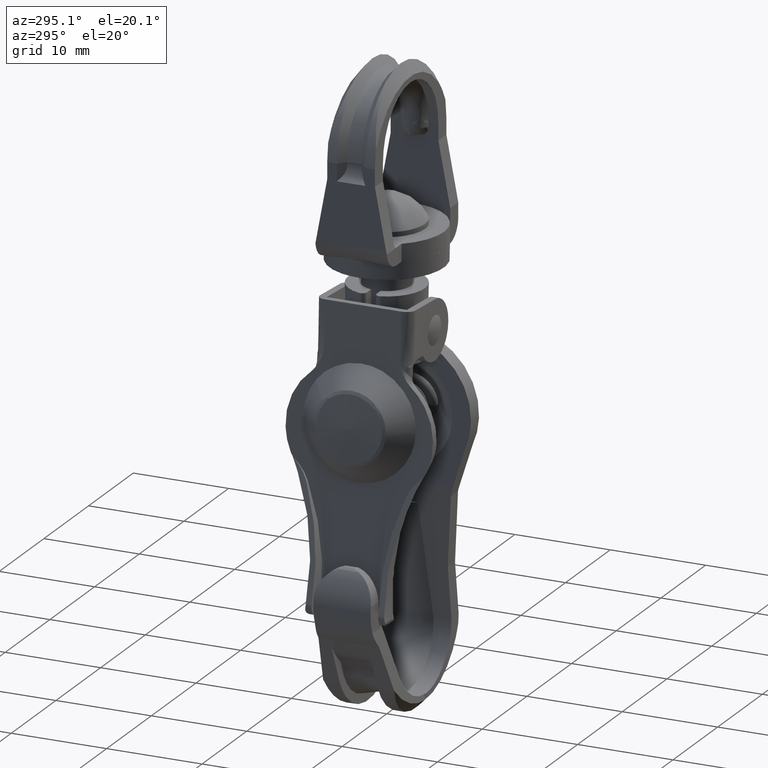
[diagram: clean part render]
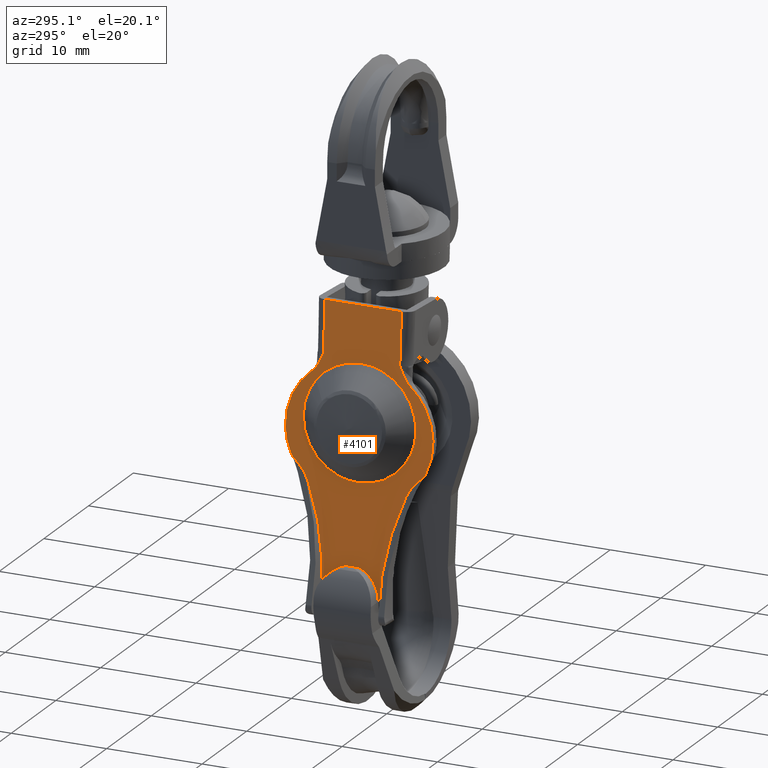
[diagram: same view with one face highlighted and labeled with its STEP entity id]
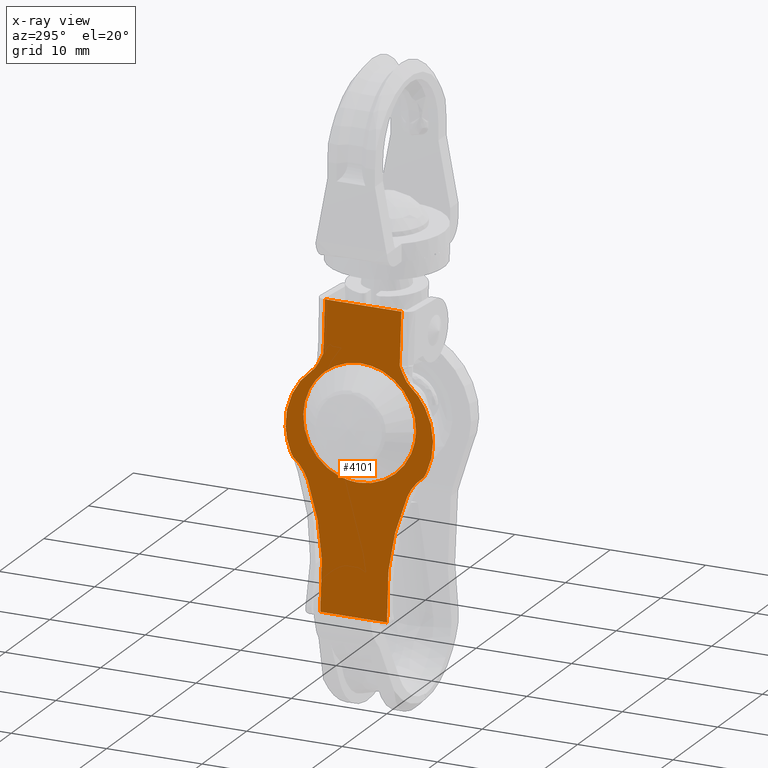
[diagram: x-ray of the same camera — body ghosted, the highlighted face saturated]
A machine part, auxiliary view. The second image highlights one B-rep face of the part: STEP entity #4101.
The next image is the same camera in x-ray: the body ghosted, the highlighted face saturated — about 0% of this face is hidden behind the body in this view.
In plain terms, the highlighted face is a freeform B-spline surface patch.
Its self-contained STEP definition (entity closure, byte-faithful):
#1745=CARTESIAN_POINT('',(-5.499999855255211,4.351844678407170,-12.529249943306100));
#1746=VERTEX_POINT('',#1745);
#1752=CARTESIAN_POINT('',(-5.500000000000000,0.0,-14.444106999999899));
#1753=VERTEX_POINT('',#1752);
#1754=CARTESIAN_POINT('',(-5.499999855255211,4.351844678407170,-12.529249943306100));
#1755=CARTESIAN_POINT('',(-5.499999868421072,3.956004394816730,-12.961668170742611));
#1756=CARTESIAN_POINT('',(-5.499999890422010,3.294532829077455,-13.496056712699390));
#1757=CARTESIAN_POINT('',(-5.499999926085918,2.222273793816458,-14.035720520259710));
#1758=CARTESIAN_POINT('',(-5.499999959310941,1.223343587372920,-14.356735489188790));
#1759=CARTESIAN_POINT('',(-5.499999985589004,0.433274308622489,-14.444170925162441));
#1760=CARTESIAN_POINT('',(-5.500000000000000,0.0,-14.444106999999899));
#1761=B_SPLINE_CURVE_WITH_KNOTS('',3,(#1754,#1755,#1756,#1757,#1758,#1759,#1760),.UNSPECIFIED.,.F.,.U.,(4,1,1,1,4),(0.000000022389491,1.758596470337595,2.523182017573594,3.593637908280760,4.893465150742548),.UNSPECIFIED.);
#1762=EDGE_CURVE('',#1746,#1753,#1761,.T.);
#1764=CARTESIAN_POINT('',(-5.500000000000000,-5.902587999999786,-8.541517837224175));
#1765=VERTEX_POINT('',#1764);
#1766=CARTESIAN_POINT('',(-5.500000000000000,0.0,-14.444106999999899));
#1767=CARTESIAN_POINT('',(-5.500000000000001,-0.410470281956269,-14.444157800272089));
#1768=CARTESIAN_POINT('',(-5.500000000000001,-1.231389166322294,-14.358148981144520));
#1769=CARTESIAN_POINT('',(-5.499999999999999,-2.316986425682539,-14.006890633059291));
#1770=CARTESIAN_POINT('',(-5.500000000000001,-3.381595031098290,-13.429467552360270));
#1771=CARTESIAN_POINT('',(-5.500000000000001,-4.349590385512271,-12.615042314032500));
#1772=CARTESIAN_POINT('',(-5.499999999999997,-5.053239418138825,-11.653914922526800));
#1773=CARTESIAN_POINT('',(-5.500000000000006,-5.498816442900020,-10.740791613035499));
#1774=CARTESIAN_POINT('',(-5.499999999999989,-5.812033143417716,-9.772881046767663));
#1775=CARTESIAN_POINT('',(-5.499999999999983,-5.902692371390180,-9.000283712499046));
#1776=CARTESIAN_POINT('',(-5.500000000000000,-5.902587999999786,-8.541517837224175));
#1777=B_SPLINE_CURVE_WITH_KNOTS('',3,(#1766,#1767,#1768,#1769,#1770,#1771,#1772,#1773,#1774,#1775,#1776),.UNSPECIFIED.,.F.,.U.,(4,1,1,1,1,1,1,1,4),(0.000000068344203,1.231409960041835,2.462828732433325,3.404507380954913,4.853190778469154,6.229503717330403,6.953867889822126,7.895545356174797,9.271822380730701),.UNSPECIFIED.);
#1778=EDGE_CURVE('',#1753,#1765,#1777,.T.);
#1780=CARTESIAN_POINT('',(-5.500000000000000,0.0,-2.638931000000099));
#1781=VERTEX_POINT('',#1780);
#1782=CARTESIAN_POINT('',(-5.500000000000000,-5.902587999999786,-8.541517837224175));
#1783=CARTESIAN_POINT('',(-5.500000000000007,-5.902746775142061,-8.034452051223457));
#1784=CARTESIAN_POINT('',(-5.499999999999993,-5.796117096422798,-7.213601071693017));
#1785=CARTESIAN_POINT('',(-5.500000000000004,-5.427137758182077,-6.162249208273804));
#1786=CARTESIAN_POINT('',(-5.500000000000000,-4.902281161693813,-5.179959644724393));
#1787=CARTESIAN_POINT('',(-5.499999999999992,-4.155373245229760,-4.281228336386927));
#1788=CARTESIAN_POINT('',(-5.500000000000006,-3.137358110333054,-3.496836518400120));
#1789=CARTESIAN_POINT('',(-5.500000000000060,-2.136799167439115,-3.000863111106814));
#1790=CARTESIAN_POINT('',(-5.499999999999789,-1.062376168395098,-2.703580191266305));
#1791=CARTESIAN_POINT('',(-5.500000000000173,-0.362179945379743,-2.638897043980460));
#1792=CARTESIAN_POINT('',(-5.500000000000000,0.0,-2.638931000000099));
#1793=B_SPLINE_CURVE_WITH_KNOTS('',3,(#1782,#1783,#1784,#1785,#1786,#1787,#1788,#1789,#1790,#1791,#1792),.UNSPECIFIED.,.F.,.U.,(4,1,1,1,1,1,1,1,4),(0.000000068751875,1.521153396210154,2.462828384536095,3.332066732883659,4.853190091764573,5.939754957853268,7.171175563356155,8.185281738022459,9.271821070003140),.UNSPECIFIED.);
#1794=EDGE_CURVE('',#1765,#1781,#1793,.T.);
#1796=CARTESIAN_POINT('',(-5.500000140278649,4.686081476628372,-4.952482838917814));
#1797=VERTEX_POINT('',#1796);
#1798=CARTESIAN_POINT('',(-5.500000000000000,0.0,-2.638931000000099));
#1799=CARTESIAN_POINT('',(-5.500000010973172,0.366564876890969,-2.638891212486167));
#1800=CARTESIAN_POINT('',(-5.500000032075039,1.071483356663056,-2.704808277212692));
#1801=CARTESIAN_POINT('',(-5.500000062266985,2.080060647395510,-2.986423044803253));
#1802=CARTESIAN_POINT('',(-5.500000091336568,3.051146093662708,-3.448623939289877));
#1803=CARTESIAN_POINT('',(-5.500000118058414,3.943802722857642,-4.100306505912532));
#1804=CARTESIAN_POINT('',(-5.500000133607390,4.463224587018607,-4.661442672091040));
#1805=CARTESIAN_POINT('',(-5.500000140278649,4.686081476628372,-4.952482838917814));
#1806=B_SPLINE_CURVE_WITH_KNOTS('',3,(#1798,#1799,#1800,#1801,#1802,#1803,#1804,#1805),.UNSPECIFIED.,.F.,.U.,(4,1,1,1,1,4),(0.000000018489264,1.099696974446768,2.114818338335621,3.129900375018133,4.314209746714116,5.413906702662763),.UNSPECIFIED.);
#1807=EDGE_CURVE('',#1781,#1797,#1806,.T.);
#1845=CARTESIAN_POINT('',(-5.500000000000000,5.902587999999786,-8.541520162775948));
#1846=VERTEX_POINT('',#1845);
#1847=CARTESIAN_POINT('',(-5.500000140278649,4.686081476628372,-4.952482838917814));
#1848=CARTESIAN_POINT('',(-5.500000127186559,4.942687375787845,-5.287444762659252));
#1849=CARTESIAN_POINT('',(-5.500000096141037,5.425735658094714,-6.081746187128549));
#1850=CARTESIAN_POINT('',(-5.500000047907332,5.823031354030761,-7.315808584817582));
#1851=CARTESIAN_POINT('',(-5.500000014136179,5.902607630502065,-8.179845368381162));
#1852=CARTESIAN_POINT('',(-5.500000000000000,5.902587999999786,-8.541520162775948));
#1853=B_SPLINE_CURVE_WITH_KNOTS('',3,(#1847,#1848,#1849,#1850,#1851,#1852),.UNSPECIFIED.,.F.,.U.,(4,1,1,4),(0.000000014612917,1.265883292758213,2.772879602013517,3.857920772157319),.UNSPECIFIED.);
#1854=EDGE_CURVE('',#1797,#1846,#1853,.T.);
#1856=CARTESIAN_POINT('',(-5.500000000000000,5.902587999999786,-8.541520162775948));
#1857=CARTESIAN_POINT('',(-5.499999978477405,5.902900887967244,-9.134469178062265));
#1858=CARTESIAN_POINT('',(-5.499999944548521,5.760432825003629,-10.069212774560990));
#1859=CARTESIAN_POINT('',(-5.499999895330666,5.205818886225512,-11.425168236241779));
#1860=CARTESIAN_POINT('',(-5.499999869287762,4.706317565210004,-12.142652245759260));
#1861=CARTESIAN_POINT('',(-5.499999855255211,4.351844678407170,-12.529249943306100));
#1862=B_SPLINE_CURVE_WITH_KNOTS('',3,(#1856,#1857,#1858,#1859,#1860,#1861),.UNSPECIFIED.,.F.,.U.,(4,1,1,4),(0.000000020898456,1.778716880629855,2.804876707333948,4.378356288559758),.UNSPECIFIED.);
#1863=EDGE_CURVE('',#1846,#1746,#1862,.T.);
#2890=CARTESIAN_POINT('',(-5.500000000000000,6.851984172058041,-12.919072912838001));
#2891=VERTEX_POINT('',#2890);
#2897=CARTESIAN_POINT('',(-5.500000000000000,7.098889230355820,-12.471798069852200));
#2898=VERTEX_POINT('',#2897);
#2899=CARTESIAN_POINT('',(-5.500000000000000,7.098889230355820,-12.471798069852200));
#2900=CARTESIAN_POINT('',(-5.500000000000000,6.851984172058041,-12.919072912838001));
#2901=QUASI_UNIFORM_CURVE('',1,(#2899,#2900),.UNSPECIFIED.,.F.,.U.);
#2902=EDGE_CURVE('',#2898,#2891,#2901,.T.);
#2991=CARTESIAN_POINT('',(-5.500000000000000,-7.098904814246680,-12.471770534778900));
#2992=VERTEX_POINT('',#2991);
#3010=CARTESIAN_POINT('',(-5.500000000000000,-6.851984844892800,-12.919071662773860));
#3011=VERTEX_POINT('',#3010);
#3012=CARTESIAN_POINT('',(-5.500000000000000,-6.851984844892800,-12.919071662773860));
#3013=CARTESIAN_POINT('',(-5.500000000000000,-7.098904814246680,-12.471770534778900));
#3014=QUASI_UNIFORM_CURVE('',1,(#3012,#3013),.UNSPECIFIED.,.F.,.U.);
#3015=EDGE_CURVE('',#3011,#2992,#3014,.T.);
#3104=CARTESIAN_POINT('',(-5.500000000000000,-4.0,-2.259963849664870));
#3105=VERTEX_POINT('',#3104);
#3131=CARTESIAN_POINT('',(-5.500000000000000,-5.107077581622789,-4.097625701881960));
#3132=VERTEX_POINT('',#3131);
#3133=CARTESIAN_POINT('',(-5.500000000000000,-5.107077581622789,-4.097625701881966));
#3134=CARTESIAN_POINT('',(-5.500000000000003,-5.036036750458877,-4.040751514504661));
#3135=CARTESIAN_POINT('',(-5.500000000000001,-4.970908651443914,-3.978670619800401));
#3136=CARTESIAN_POINT('',(-5.499999999999999,-4.849637176811667,-3.846596950745265));
#3137=CARTESIAN_POINT('',(-5.499999999999999,-4.793516686788201,-3.776584023513107));
#3138=CARTESIAN_POINT('',(-5.499999999999999,-4.688156945439498,-3.630498602160606));
#3139=CARTESIAN_POINT('',(-5.499999999999999,-4.638871313742961,-3.554295322697278));
#3140=CARTESIAN_POINT('',(-5.499999999999999,-4.546338169370078,-3.399300874537983));
#3141=CARTESIAN_POINT('',(-5.499999999999998,-4.502906633830497,-3.320271218456808));
#3142=CARTESIAN_POINT('',(-5.500000000000001,-4.378083225279133,-3.080224884912764));
#3143=CARTESIAN_POINT('',(-5.500000000000001,-4.302058812870657,-2.916263189409485));
#3144=CARTESIAN_POINT('',(-5.499999999999998,-4.189608823120345,-2.669747620966028));
#3145=CARTESIAN_POINT('',(-5.499999999999998,-4.152409675900326,-2.587444620185987));
#3146=CARTESIAN_POINT('',(-5.500000000000000,-4.095981913995042,-2.464280408894270));
#3147=CARTESIAN_POINT('',(-5.500000000000000,-4.067611260385889,-2.402770650694670));
#3148=CARTESIAN_POINT('',(-5.499999999999999,-4.038807169122372,-2.341460915305826));
#3149=CARTESIAN_POINT('',(-5.500000000000000,-4.019485707518367,-2.300642551790642));
#3150=CARTESIAN_POINT('',(-5.500000000000523,-4.009707664198350,-2.280160167947950));
#3151=CARTESIAN_POINT('',(-5.500000000000000,-4.0,-2.259963849664870));
#3152=B_SPLINE_CURVE_WITH_KNOTS('',3,(#3133,#3134,#3135,#3136,#3137,#3138,#3139,#3140,#3141,#3142,#3143,#3144,#3145,#3146,#3147,#3148,#3149,#3150,#3151),.UNSPECIFIED.,.F.,.U.,(4,2,2,2,2,2,2,1,2,4),(0.0,0.125000000000000,0.250000000000000,0.374999999999999,0.499999999999999,0.749999999999999,0.874999999999999,0.937499999999999,0.968750000000000,1.0),.UNSPECIFIED.);
#3153=EDGE_CURVE('',#3132,#3105,#3152,.T.);
#3243=CARTESIAN_POINT('',(-5.500000000000000,3.999997999999950,-2.259964297166655));
#3244=VERTEX_POINT('',#3243);
#3245=CARTESIAN_POINT('',(-5.500000000000000,5.107075456622740,-4.097626402393465));
#3246=VERTEX_POINT('',#3245);
#3247=CARTESIAN_POINT('',(-5.500000000000000,3.999997999999950,-2.259964297166655));
#3248=CARTESIAN_POINT('',(-5.500000000001059,4.009706899290903,-2.280163189407725));
#3249=CARTESIAN_POINT('',(-5.500000000000002,4.019483528136878,-2.300642634793348));
#3250=CARTESIAN_POINT('',(-5.499999999999999,4.038804291170164,-2.341459520331958));
#3251=CARTESIAN_POINT('',(-5.500000000000000,4.067607349537039,-2.402767038655468));
#3252=CARTESIAN_POINT('',(-5.500000000000000,4.095977002447991,-2.464274581487171));
#3253=CARTESIAN_POINT('',(-5.499999999999998,4.152402773325145,-2.587434369235578));
#3254=CARTESIAN_POINT('',(-5.500000000000001,4.189600607415279,-2.669734430442797));
#3255=CARTESIAN_POINT('',(-5.499999999999999,4.302046440133069,-2.916241248046027));
#3256=CARTESIAN_POINT('',(-5.500000000000000,4.378069683269847,-3.080200755881495));
#3257=CARTESIAN_POINT('',(-5.499999999999998,4.502883978986525,-3.320233454041229));
#3258=CARTESIAN_POINT('',(-5.499999999999998,4.546311194361385,-3.399256826622451));
#3259=CARTESIAN_POINT('',(-5.499999999999998,4.638830511619152,-3.554233952942884));
#3260=CARTESIAN_POINT('',(-5.499999999999999,4.688113480409067,-3.630438990925294));
#3261=CARTESIAN_POINT('',(-5.499999999999999,4.793498662513573,-3.776565412260319));
#3262=CARTESIAN_POINT('',(-5.500000000000000,4.849629870878732,-3.846592012083066));
#3263=CARTESIAN_POINT('',(-5.500000000000002,4.970913434948952,-3.978678720737607));
#3264=CARTESIAN_POINT('',(-5.500000000000002,5.036043032609165,-4.040758926986332));
#3265=CARTESIAN_POINT('',(-5.500000000000000,5.107075456622740,-4.097626402393465));
#3266=B_SPLINE_CURVE_WITH_KNOTS('',3,(#3247,#3248,#3249,#3250,#3251,#3252,#3253,#3254,#3255,#3256,#3257,#3258,#3259,#3260,#3261,#3262,#3263,#3264,#3265),.UNSPECIFIED.,.F.,.U.,(4,2,1,2,2,2,2,2,2,4),(0.0,0.031250000000000,0.062499999999999,0.124999999999999,0.249999999999999,0.499999999999999,0.624999999999999,0.749999999999999,0.874999999999999,1.0),.UNSPECIFIED.);
#3267=EDGE_CURVE('',#3244,#3246,#3266,.T.);
#3330=CARTESIAN_POINT('',(-5.500000000000000,-4.0,3.099990999999790));
#3331=VERTEX_POINT('',#3330);
#3332=CARTESIAN_POINT('',(-5.500000000000000,-4.0,-2.259963849664870));
#3333=CARTESIAN_POINT('',(-5.500000000000000,-4.0,3.099990999999790));
#3334=QUASI_UNIFORM_CURVE('',1,(#3332,#3333),.UNSPECIFIED.,.F.,.U.);
#3335=EDGE_CURVE('',#3105,#3331,#3334,.T.);
#3397=CARTESIAN_POINT('',(-5.500000000000000,3.999997999999950,3.099990999999790));
#3398=VERTEX_POINT('',#3397);
#3399=CARTESIAN_POINT('',(-5.500000000000000,3.999997999999950,3.099990999999790));
#3400=CARTESIAN_POINT('',(-5.500000000000000,3.999997999999950,-2.259964297166655));
#3401=QUASI_UNIFORM_CURVE('',1,(#3399,#3400),.UNSPECIFIED.,.F.,.U.);
#3402=EDGE_CURVE('',#3398,#3244,#3401,.T.);
#3988=CARTESIAN_POINT('',(-5.500000000000000,-8.504094100294704,-29.314435682705930));
#3989=CARTESIAN_POINT('',(-5.500000000000000,-8.504094100294704,4.642065786786990));
#3990=CARTESIAN_POINT('',(-5.500000000000000,8.504092498313796,-29.314435682705930));
#3991=CARTESIAN_POINT('',(-5.500000000000000,8.504092498313796,4.642065786786990));
#3992=B_SPLINE_SURFACE_WITH_KNOTS('',1,1,((#3988,#3990),(#3989,#3991)),.UNSPECIFIED.,.F.,.F.,.U.,(2,2),(2,2),(0.0,33.956501469492920),(0.0,17.008186598608500),.UNSPECIFIED.);
#3993=CARTESIAN_POINT('',(-5.500000000000000,-5.213132650778280,-15.041253637972551));
#3994=VERTEX_POINT('',#3993);
#3995=CARTESIAN_POINT('',(-5.500000000000000,-6.851984844892800,-12.919071662773860));
#3996=CARTESIAN_POINT('',(-5.499999999999996,-6.557505024294989,-13.139081024847719));
#3997=CARTESIAN_POINT('',(-5.500000000000009,-5.892659579632700,-13.760997889859990));
#3998=CARTESIAN_POINT('',(-5.499999999999997,-5.415189905625193,-14.543394814765930));
#3999=CARTESIAN_POINT('',(-5.500000000000000,-5.213132650778280,-15.041253637972551));
#4000=B_SPLINE_CURVE_WITH_KNOTS('',3,(#3995,#3996,#3997,#3998,#3999),.UNSPECIFIED.,.F.,.U.,(4,1,4),(4.556559E-009,1.102794520772628,2.714570770946749),.UNSPECIFIED.);
#4001=EDGE_CURVE('',#3011,#3994,#4000,.T.);
#4002=ORIENTED_EDGE('',*,*,#4001,.F.);
#4003=ORIENTED_EDGE('',*,*,#3015,.T.);
#4004=CARTESIAN_POINT('',(-5.500000000000000,-7.098904814246680,-12.471770534778900));
#4005=CARTESIAN_POINT('',(-5.499999999999994,-7.390262431672905,-11.835097765480700));
#4006=CARTESIAN_POINT('',(-5.500000000000004,-7.671751695184728,-10.849136567923431));
#4007=CARTESIAN_POINT('',(-5.500000000000001,-7.759222873483633,-9.424176718402794));
#4008=CARTESIAN_POINT('',(-5.499999999999991,-7.657061881490383,-8.338378656071155));
#4009=CARTESIAN_POINT('',(-5.500000000000018,-7.358933635702635,-7.214948607021090));
#4010=CARTESIAN_POINT('',(-5.500000000000006,-6.914666339778524,-6.219471777381049));
#4011=CARTESIAN_POINT('',(-5.499999999999986,-6.203889389109568,-5.122506355950524));
#4012=CARTESIAN_POINT('',(-5.500000000000008,-5.559502835529306,-4.459631016383411));
#4013=CARTESIAN_POINT('',(-5.500000000000000,-5.107077581622789,-4.097625701881960));
#4014=B_SPLINE_CURVE_WITH_KNOTS('',3,(#4004,#4005,#4006,#4007,#4008,#4009,#4010,#4011,#4012,#4013),.UNSPECIFIED.,.F.,.U.,(4,1,1,1,1,1,1,4),(0.000000057699543,2.100370986594129,3.041930640911374,4.273199898170899,5.359566187779051,6.518396119173666,7.532377206955215,9.270615060099667),.UNSPECIFIED.);
#4015=EDGE_CURVE('',#2992,#3132,#4014,.T.);
#4016=ORIENTED_EDGE('',*,*,#4015,.T.);
#4017=ORIENTED_EDGE('',*,*,#3153,.T.);
#4018=ORIENTED_EDGE('',*,*,#3335,.T.);
#4019=CARTESIAN_POINT('',(-5.500000000000000,3.999997999999950,3.099990999999790));
#4020=CARTESIAN_POINT('',(-5.500000000000000,-4.0,3.099990999999790));
#4021=QUASI_UNIFORM_CURVE('',1,(#4019,#4020),.UNSPECIFIED.,.F.,.U.);
#4022=EDGE_CURVE('',#3398,#3331,#4021,.T.);
#4023=ORIENTED_EDGE('',*,*,#4022,.F.);
#4024=ORIENTED_EDGE('',*,*,#3402,.T.);
#4025=ORIENTED_EDGE('',*,*,#3267,.T.);
#4026=CARTESIAN_POINT('',(-5.500000000000000,5.107075456622740,-4.097626402393465));
#4027=CARTESIAN_POINT('',(-5.500000000000001,5.427473639089074,-4.354112517798016));
#4028=CARTESIAN_POINT('',(-5.500000000000004,6.128163431982730,-5.024077686762735));
#4029=CARTESIAN_POINT('',(-5.499999999999988,6.966651248443429,-6.247438371642887));
#4030=CARTESIAN_POINT('',(-5.500000000000012,7.462397902344214,-7.513820995851490));
#4031=CARTESIAN_POINT('',(-5.500000000000000,7.686067871412099,-8.603795399402173));
#4032=CARTESIAN_POINT('',(-5.499999999999905,7.762152121687895,-9.641470857351655));
#4033=CARTESIAN_POINT('',(-5.500000000000050,7.646005346766151,-10.969998604793510));
#4034=CARTESIAN_POINT('',(-5.499999999999987,7.339865783237045,-11.944862068229110));
#4035=CARTESIAN_POINT('',(-5.500000000000000,7.098889230355820,-12.471798069852200));
#4036=B_SPLINE_CURVE_WITH_KNOTS('',3,(#4026,#4027,#4028,#4029,#4030,#4031,#4032,#4033,#4034,#4035),.UNSPECIFIED.,.F.,.U.,(4,1,1,1,1,1,1,4),(0.000000057698335,1.231256718715521,2.897078581596086,4.418055064102370,5.287142728255015,6.228704056052614,7.532400894470324,9.270644213945422),.UNSPECIFIED.);
#4037=EDGE_CURVE('',#3246,#2898,#4036,.T.);
#4038=ORIENTED_EDGE('',*,*,#4037,.T.);
#4039=ORIENTED_EDGE('',*,*,#2902,.T.);
#4040=CARTESIAN_POINT('',(-5.500000000000000,5.213132650778290,-15.041253637972551));
#4041=VERTEX_POINT('',#4040);
#4042=CARTESIAN_POINT('',(-5.500000000000000,5.213132650778290,-15.041253637972551));
#4043=CARTESIAN_POINT('',(-5.500000000000003,5.393971989689717,-14.595839552427250));
#4044=CARTESIAN_POINT('',(-5.500000000000002,5.856815057262518,-13.807397923578080));
#4045=CARTESIAN_POINT('',(-5.500000000000005,6.512138241976897,-13.172874765686110));
#4046=CARTESIAN_POINT('',(-5.500000000000000,6.851984172058041,-12.919072912838001));
#4047=B_SPLINE_CURVE_WITH_KNOTS('',3,(#4042,#4043,#4044,#4045,#4046),.UNSPECIFIED.,.F.,.U.,(4,1,4),(4.556473E-009,1.442114795799104,2.714569225303028),.UNSPECIFIED.);
#4048=EDGE_CURVE('',#4041,#2891,#4047,.T.);
#4049=ORIENTED_EDGE('',*,*,#4048,.F.);
#4050=CARTESIAN_POINT('',(-5.500000000000000,3.499998000000000,-26.532455000000098));
#4051=VERTEX_POINT('',#4050);
#4052=CARTESIAN_POINT('',(-5.500000000000000,3.499998000000000,-26.532455000000098));
#4053=CARTESIAN_POINT('',(-5.499999999999985,3.379364198236301,-25.011356974727601));
#4054=CARTESIAN_POINT('',(-5.500000000000030,3.402581829957109,-22.621769066456739));
#4055=CARTESIAN_POINT('',(-5.499999999999992,3.979325949361711,-18.753476043229981));
#4056=CARTESIAN_POINT('',(-5.499999999999997,4.654046771556834,-16.461018518924430));
#4057=CARTESIAN_POINT('',(-5.500000000000000,5.213132650778290,-15.041253637972551));
#4058=B_SPLINE_CURVE_WITH_KNOTS('',3,(#4052,#4053,#4054,#4055,#4056,#4057),.UNSPECIFIED.,.F.,.U.,(4,1,1,4),(1.826304E-009,4.577604063442458,7.141047418173287,11.718651479789960),.UNSPECIFIED.);
#4059=EDGE_CURVE('',#4051,#4041,#4058,.T.);
#4060=ORIENTED_EDGE('',*,*,#4059,.F.);
#4061=CARTESIAN_POINT('',(-5.500000000000000,3.499998000000000,-27.772362000000101));
#4062=VERTEX_POINT('',#4061);
#4063=CARTESIAN_POINT('',(-5.500000000000000,3.499998000000000,-26.532455000000098));
#4064=CARTESIAN_POINT('',(-5.500000000000000,3.499998000000000,-27.772362000000101));
#4065=QUASI_UNIFORM_CURVE('',1,(#4063,#4064),.UNSPECIFIED.,.F.,.U.);
#4066=EDGE_CURVE('',#4051,#4062,#4065,.T.);
#4067=ORIENTED_EDGE('',*,*,#4066,.T.);
#4068=CARTESIAN_POINT('',(-5.500000000000000,-3.500000000000000,-27.772362000000101));
#4069=VERTEX_POINT('',#4068);
#4070=CARTESIAN_POINT('',(-5.500000000000000,-3.500000000000000,-27.772362000000101));
#4071=CARTESIAN_POINT('',(-5.500000000000000,3.499998000000000,-27.772362000000101));
#4072=QUASI_UNIFORM_CURVE('',1,(#4070,#4071),.UNSPECIFIED.,.F.,.U.);
#4073=EDGE_CURVE('',#4069,#4062,#4072,.T.);
#4074=ORIENTED_EDGE('',*,*,#4073,.F.);
#4075=CARTESIAN_POINT('',(-5.500000000000000,-3.500000000000000,-26.532455000000098));
#4076=VERTEX_POINT('',#4075);
#4077=CARTESIAN_POINT('',(-5.500000000000000,-3.500000000000000,-27.772362000000101));
#4078=CARTESIAN_POINT('',(-5.500000000000000,-3.500000000000000,-26.532455000000098));
#4079=QUASI_UNIFORM_CURVE('',1,(#4077,#4078),.UNSPECIFIED.,.F.,.U.);
#4080=EDGE_CURVE('',#4069,#4076,#4079,.T.);
#4081=ORIENTED_EDGE('',*,*,#4080,.T.);
#4082=CARTESIAN_POINT('',(-5.500000000000000,-5.213132650778280,-15.041253637972551));
#4083=CARTESIAN_POINT('',(-5.500000000000008,-4.564471476671794,-16.688144340834981));
#4084=CARTESIAN_POINT('',(-5.499999999999969,-3.822724635640118,-19.347722646933111));
#4085=CARTESIAN_POINT('',(-5.500000000000051,-3.383502178815231,-23.235510249379089));
#4086=CARTESIAN_POINT('',(-5.499999999999986,-3.408366444320425,-25.376421872306050));
#4087=CARTESIAN_POINT('',(-5.500000000000000,-3.500000000000000,-26.532455000000098));
#4088=B_SPLINE_CURVE_WITH_KNOTS('',3,(#4082,#4083,#4084,#4085,#4086,#4087),.UNSPECIFIED.,.F.,.U.,(4,1,1,4),(1.824297E-009,5.310019005065960,8.239675491804679,11.718651192518630),.UNSPECIFIED.);
#4089=EDGE_CURVE('',#3994,#4076,#4088,.T.);
#4090=ORIENTED_EDGE('',*,*,#4089,.F.);
#4091=EDGE_LOOP('',(#4002,#4003,#4016,#4017,#4018,#4023,#4024,#4025,#4038,#4039,#4049,#4060,#4067,#4074,#4081,#4090));
#4092=FACE_OUTER_BOUND('',#4091,.T.);
#4093=ORIENTED_EDGE('',*,*,#1778,.F.);
#4094=ORIENTED_EDGE('',*,*,#1762,.F.);
#4095=ORIENTED_EDGE('',*,*,#1863,.F.);
#4096=ORIENTED_EDGE('',*,*,#1854,.F.);
#4097=ORIENTED_EDGE('',*,*,#1807,.F.);
#4098=ORIENTED_EDGE('',*,*,#1794,.F.);
#4099=EDGE_LOOP('',(#4093,#4094,#4095,#4096,#4097,#4098));
#4100=FACE_BOUND('',#4099,.T.);
#4101=ADVANCED_FACE('',(#4092,#4100),#3992,.T.);